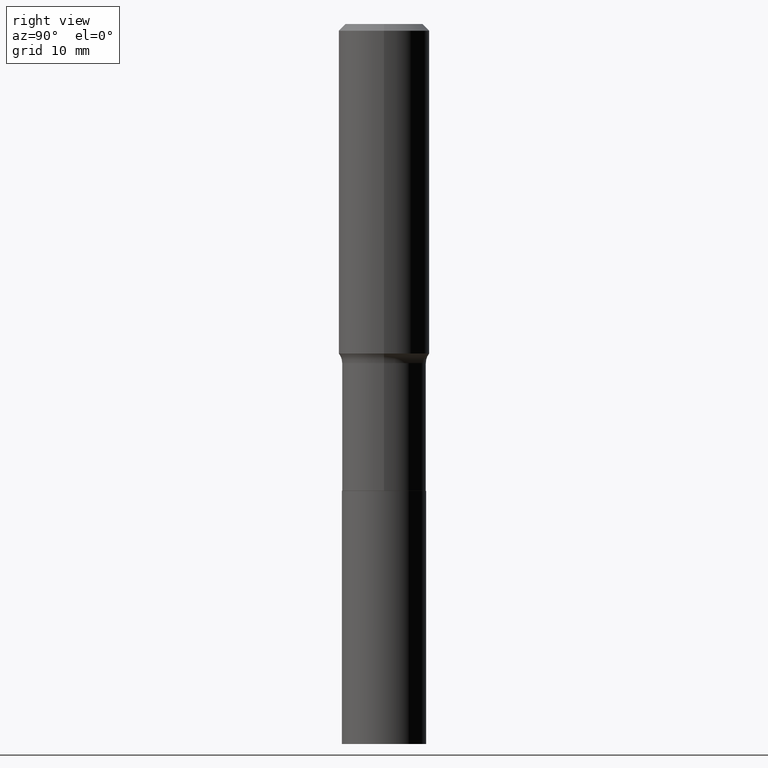
[diagram: clean part render]
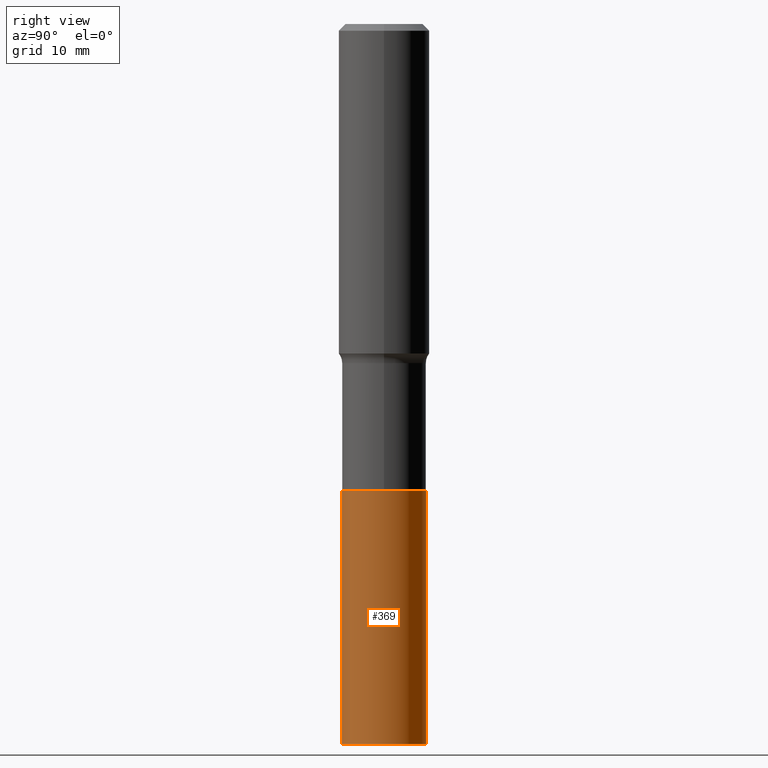
[diagram: same view with one face highlighted and labeled with its STEP entity id]
A machine part, right view. The second image highlights one B-rep face of the part: STEP entity #369.
In plain terms, the highlighted cylindrical surface (partial cylindrical patch) has radius 5.5562 mm, axis along (-0, 0, 1).
Its self-contained STEP definition (entity closure, byte-faithful):
#19 = CARTESIAN_POINT ( 'NONE',  ( 5.930750948760193592E-29, -8.467540542962398542E-15, -2.425200000000000244 ) ) ;
#28 = AXIS2_PLACEMENT_3D ( 'NONE', #140, #285, #436 ) ;
#40 = CARTESIAN_POINT ( 'NONE',  ( 1.554312234475294098E-15, 0.2187499999999869549, -3.740199999999999747 ) ) ;
#47 = DIRECTION ( 'NONE',  ( -6.982962677686265133E-15, -1.000000000000000000, 2.497689594207326371E-15 ) ) ;
#77 = CARTESIAN_POINT ( 'NONE',  ( 1.554312234475310270E-15, 0.2187499999999915068, -2.425200000000001577 ) ) ;
#87 = CARTESIAN_POINT ( 'NONE',  ( 1.554312234475278124E-15, 0.2187499999999915068, -2.425200000000001133 ) ) ;
#88 = ORIENTED_EDGE ( 'NONE', *, *, #184, .F. ) ;
#98 = ORIENTED_EDGE ( 'NONE', *, *, #126, .F. ) ;
#114 = DIRECTION ( 'NONE',  ( -2.445419500462251328E-29, 3.491551947444624874E-15, 1.000000000000000000 ) ) ;
#126 = EDGE_CURVE ( 'NONE', #132, #167, #378, .T. ) ;
#128 = EDGE_LOOP ( 'NONE', ( #277, #133, #98, #88 ) ) ;
#132 = VERTEX_POINT ( 'NONE', #256 ) ;
#133 = ORIENTED_EDGE ( 'NONE', *, *, #361, .T. ) ;
#140 = CARTESIAN_POINT ( 'NONE',  ( 5.930750948760194713E-29, -8.467540542962398542E-15, -2.425200000000000689 ) ) ;
#166 = DIRECTION ( 'NONE',  ( -2.445419500462251328E-29, 3.491551947444624874E-15, 1.000000000000000000 ) ) ;
#167 = VERTEX_POINT ( 'NONE', #77 ) ;
#184 = EDGE_CURVE ( 'NONE', #442, #132, #295, .T. ) ;
#191 = CARTESIAN_POINT ( 'NONE',  ( -1.527523085743811284E-15, -0.2187500000000084655, -2.425199999999999800 ) ) ;
#197 = FACE_OUTER_BOUND ( 'NONE', #128, .T. ) ;
#199 = LINE ( 'NONE', #87, #206 ) ;
#206 = VECTOR ( 'NONE', #235, 39.37007874015748143 ) ;
#209 = EDGE_CURVE ( 'NONE', #442, #244, #411, .T. ) ;
#223 = VECTOR ( 'NONE', #114, 39.37007874015748143 ) ;
#224 = DIRECTION ( 'NONE',  ( -2.445419500462251328E-29, 3.491551947444624874E-15, 1.000000000000000000 ) ) ;
#233 = CYLINDRICAL_SURFACE ( 'NONE', #332, 0.2187500000000000000 ) ;
#235 = DIRECTION ( 'NONE',  ( -2.445419500462251328E-29, 3.491551947444624874E-15, 1.000000000000000000 ) ) ;
#244 = VERTEX_POINT ( 'NONE', #40 ) ;
#256 = CARTESIAN_POINT ( 'NONE',  ( -1.527523085743811284E-15, -0.2187500000000084655, -2.425199999999999800 ) ) ;
#260 = CARTESIAN_POINT ( 'NONE',  ( 9.146477591868052127E-29, -1.305893135385207557E-14, -3.740199999999998859 ) ) ;
#267 = AXIS2_PLACEMENT_3D ( 'NONE', #260, #224, #47 ) ;
#277 = ORIENTED_EDGE ( 'NONE', *, *, #209, .T. ) ;
#285 = DIRECTION ( 'NONE',  ( -2.445419500462251328E-29, 3.491551947444624874E-15, 1.000000000000000000 ) ) ;
#295 = LINE ( 'NONE', #191, #223 ) ;
#324 = CARTESIAN_POINT ( 'NONE',  ( -1.527523085743778941E-15, -0.2187500000000130451, -3.740199999999998415 ) ) ;
#332 = AXIS2_PLACEMENT_3D ( 'NONE', #19, #166, #374 ) ;
#361 = EDGE_CURVE ( 'NONE', #244, #167, #199, .T. ) ;
#369 = ADVANCED_FACE ( 'NONE', ( #197 ), #233, .T. ) ;
#374 = DIRECTION ( 'NONE',  ( -6.982962677686265133E-15, -1.000000000000000000, 3.746534391310989557E-15 ) ) ;
#378 = CIRCLE ( 'NONE', #28, 0.2187500000000000000 ) ;
#411 = CIRCLE ( 'NONE', #267, 0.2187500000000000000 ) ;
#436 = DIRECTION ( 'NONE',  ( -6.982962677686265133E-15, -1.000000000000000000, 3.746534391310989557E-15 ) ) ;
#442 = VERTEX_POINT ( 'NONE', #324 ) ;